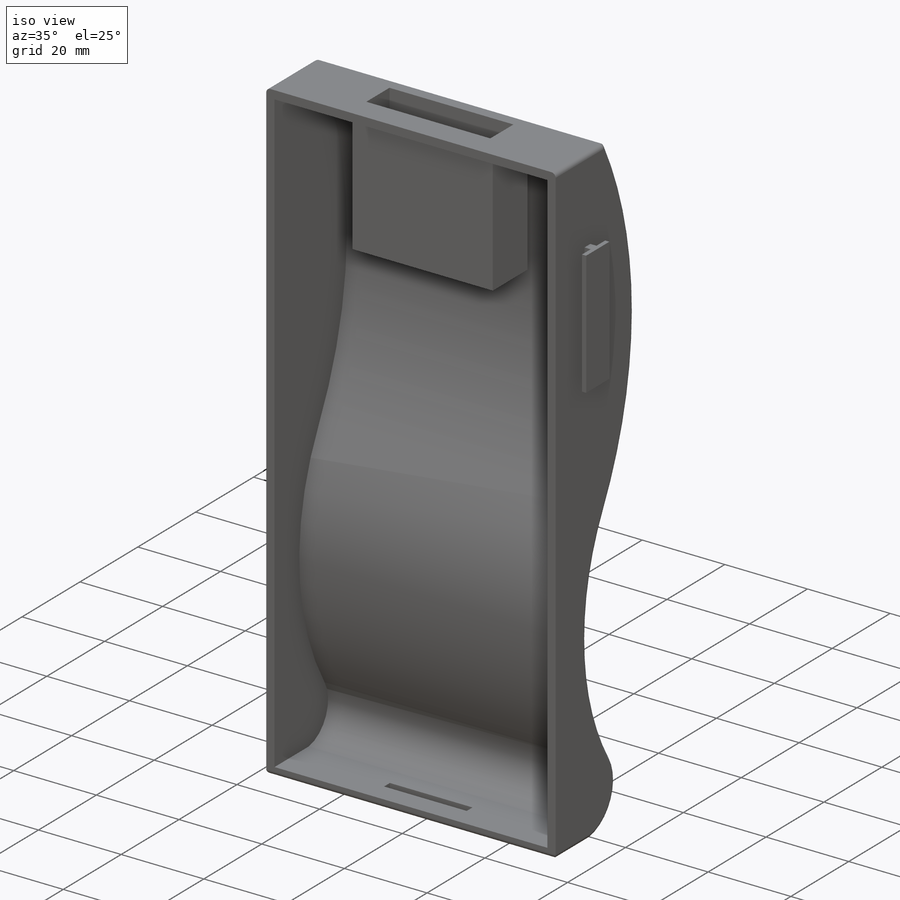
[diagram: iso view]
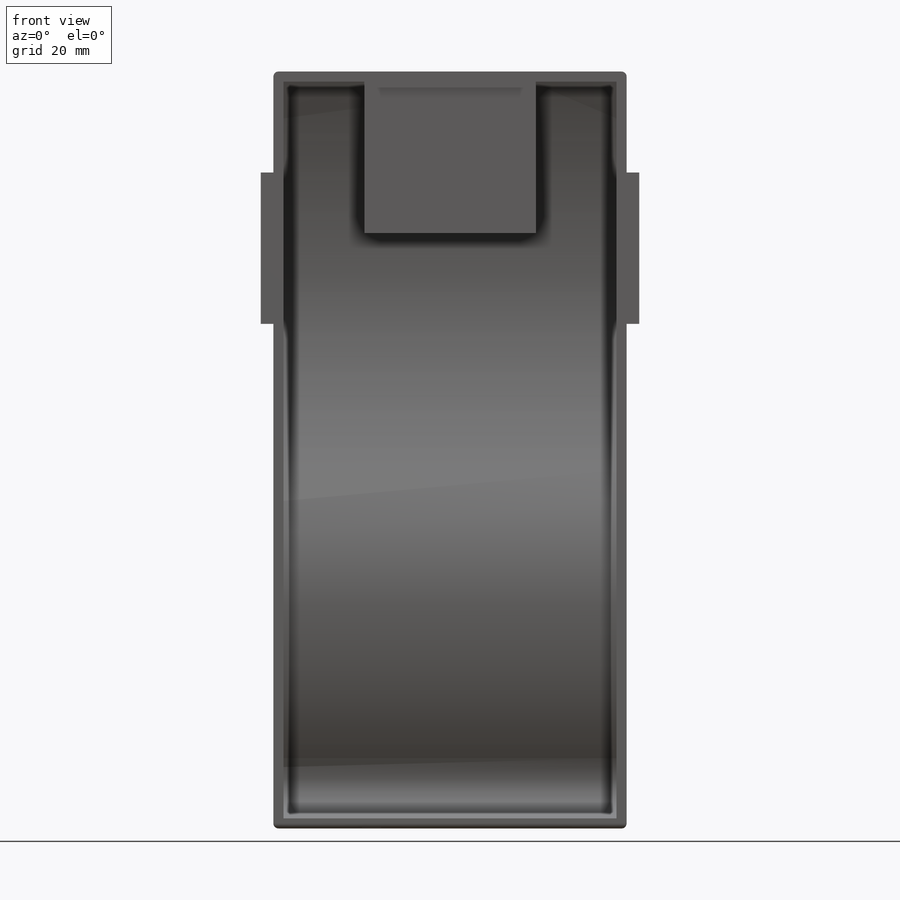
[diagram: front view]
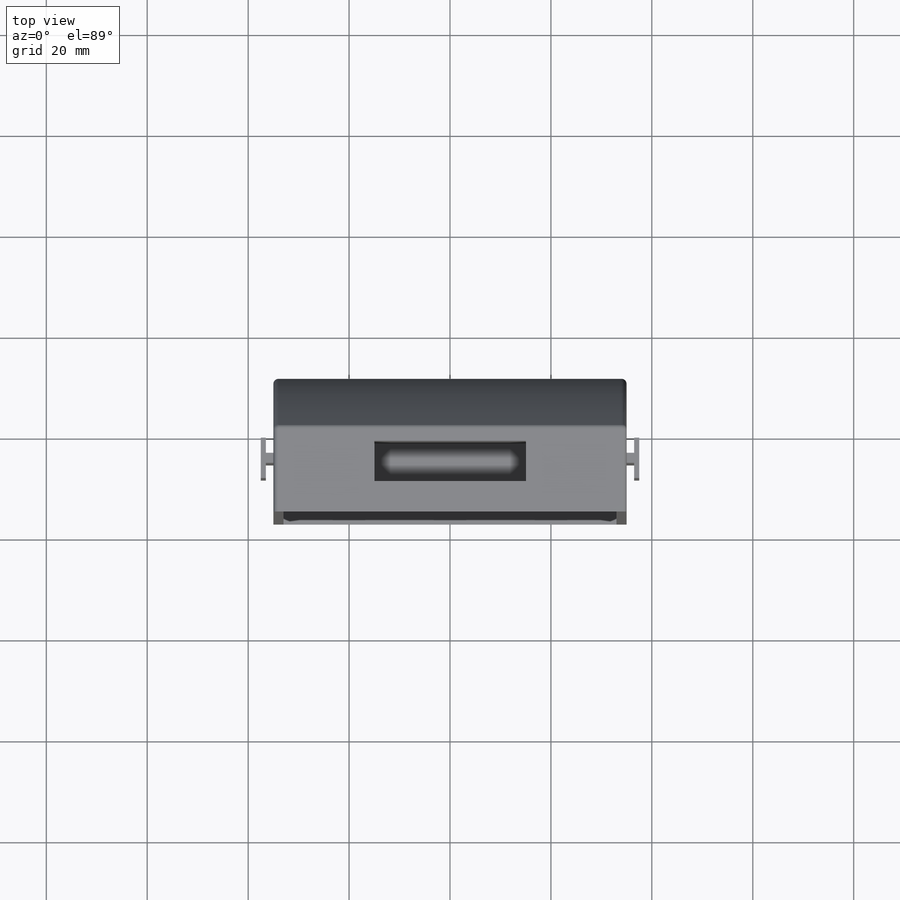
[diagram: top view]
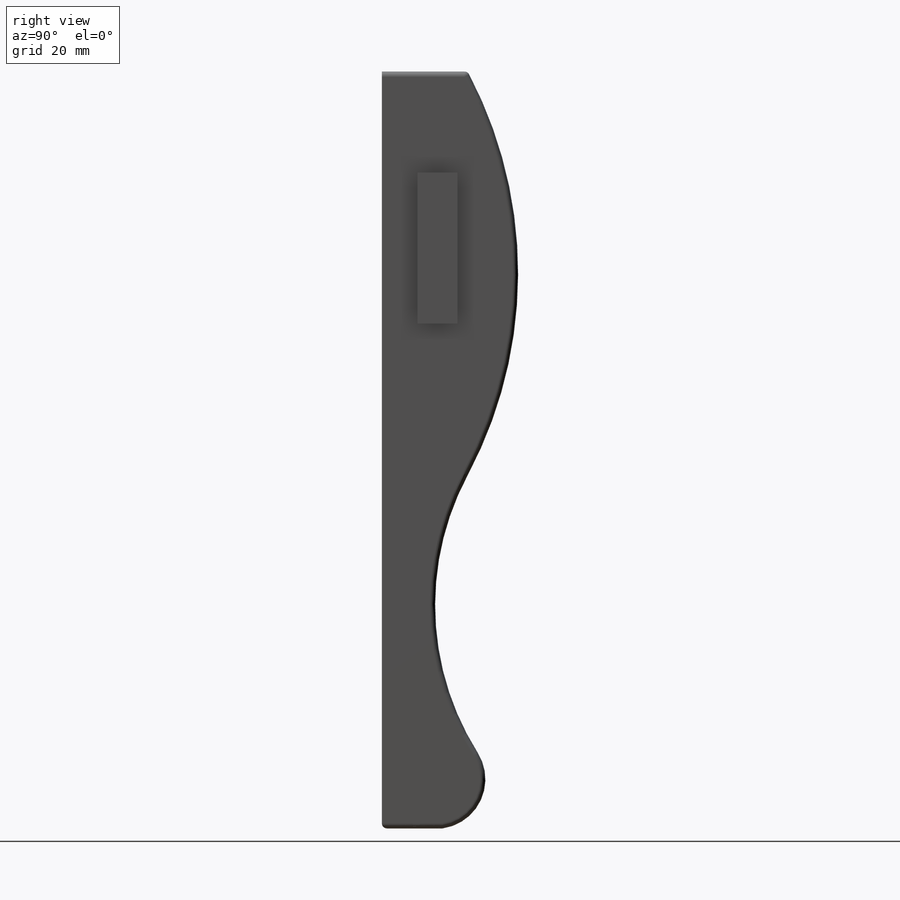
[diagram: right view]
SOLIDWORKS PART (.sldprt)
format: sldprt  version: not decoded by parser v0  size: 542,208 bytes
history: native  units: mm
features: sketch x5, cut_extrude x3, extrude x2, fillet x2, material x1, plane x1, mirror x1, shell x1 (+14 scaffold rows collapsed)
feature tree (30):
  scaffold x14  (default folders/planes/origin — collapsed)
  material  "Material <not specified>"
  sketch  "Sketch1"  dims[c1.D6=~80.405327mm c1.D1=150.0mm c1.D2=40.0mm c1.D3=20.0mm c1.D4=15.0mm c1.D5=40.0mm c2.D6=30.0mm c2.D5=30.0mm c3.D6=40.0mm c3.D7=80.0mm c3.D8=55.0mm c3.D9=22.0mm]
  extrude  "Extrude1"  Depth=70mm
  sketch  "Sketch2"  dims[D1=3.0mm]
  cut_extrude  "Extrude2"  [1 undecoded]
  sketch  "Sketch3"  dims[D1=8.0mm D2=30.0mm D3=3.0mm]
  cut_extrude  "tagbox"  Depth=30mm
  plane  "Plane1"  Offset=20mm
  sketch  "Sketch5"  dims[D1=1.5mm D2=3.0mm D3=1.0mm D4=2.0mm D5=10.0mm]
  extrude  "Extrude4"  Depth=30mm
  mirror  "Mirror1"
  shell  "Shell1"  Thickness=2mm
  sketch  "Sketch6"  dims[D1=20.0mm D2=2.0mm]
  cut_extrude  "Extrude5"  [1 undecoded]
  fillet  "Fillet4"  Radius=1mm
  fillet  "Fillet5"  Radius=1mm
decode coverage: 11 of 14 modeling features carry decoded parameters
note: ~ marks probable driven/reference dimensions
note: 2 parameter values undecoded
note: suppression state not decoded; provenance and decode notes live in map.json
